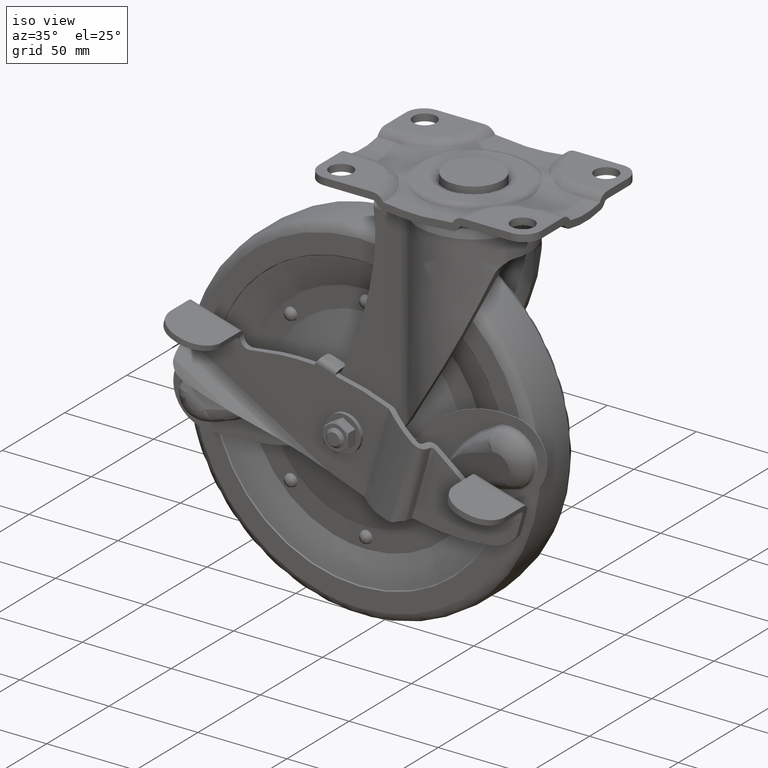
[diagram: clean part render]
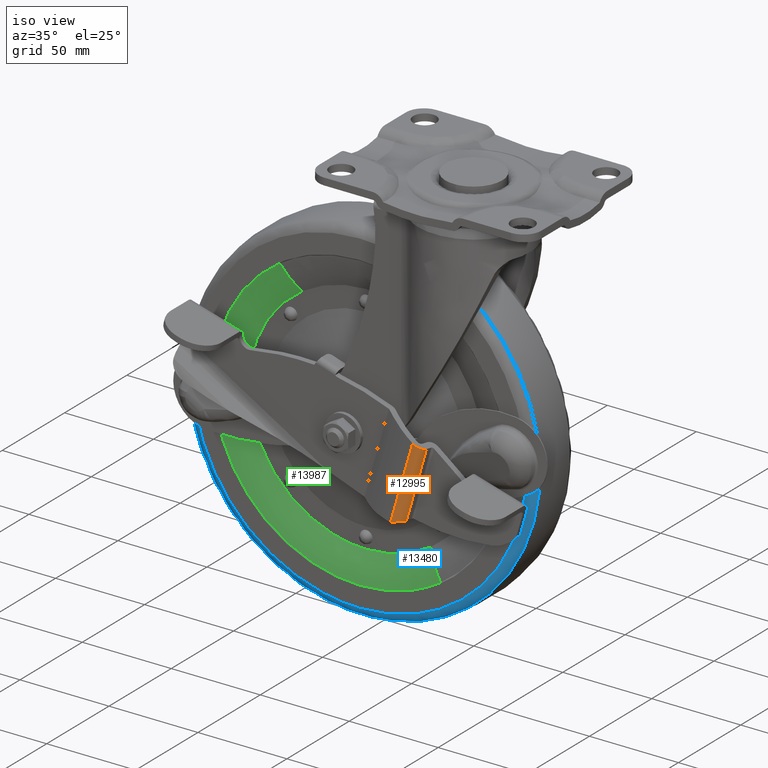
[diagram: same view with three faces highlighted in distinct colors, each labeled with its STEP entity id]
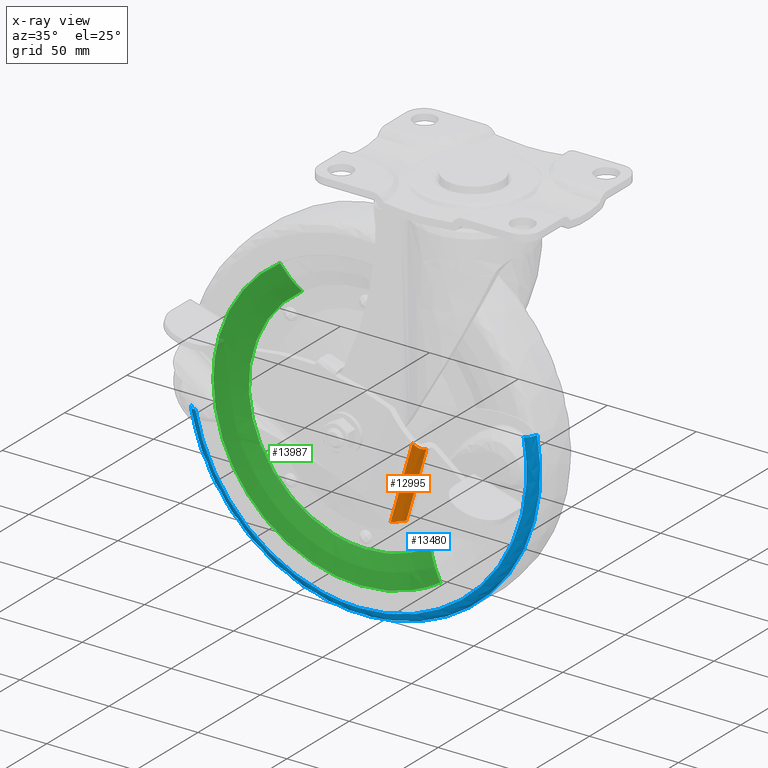
[diagram: x-ray of the same camera — body ghosted, the three highlighted faces saturated]
A machine part, iso view with three faces highlighted in distinct colors.
The next image is the same camera in x-ray (body ghosted, the three faces saturated) — at least one of them is partly hidden behind the body in this view.
Their STEP definitions:

[orange] entity #12995 — the highlighted face is a freeform B-spline surface patch.
#11049=CARTESIAN_POINT('',(-4.587267872609290,-31.407745479407449,-129.998422661881790));
#11050=VERTEX_POINT('',#11049);
#11064=CARTESIAN_POINT('',(-15.849926306554350,-31.407745566935450,-169.312863797677010));
#11065=VERTEX_POINT('',#11064);
#11066=CARTESIAN_POINT('',(-4.587267872609290,-31.407745479407449,-129.998422661881790));
#11067=CARTESIAN_POINT('',(-15.849926306554350,-31.407745566935450,-169.312863797677010));
#11068=QUASI_UNIFORM_CURVE('',1,(#11066,#11067),.UNSPECIFIED.,.F.,.U.);
#11069=EDGE_CURVE('',#11050,#11065,#11068,.T.);
#11426=CARTESIAN_POINT('',(-18.364883332796499,-34.887481090625499,-169.176665490673510));
#11427=VERTEX_POINT('',#11426);
#11428=CARTESIAN_POINT('',(-16.887379666058301,-33.722400510460048,-169.056338248163510));
#11429=VERTEX_POINT('',#11428);
#11430=CARTESIAN_POINT('',(-18.364883332796499,-34.887481090625499,-169.176665490673510));
#11431=CARTESIAN_POINT('',(-18.228866305537078,-34.822464386988813,-169.117649136827310));
#11432=CARTESIAN_POINT('',(-18.093623968221110,-34.749400455863039,-169.074454353238510));
#11433=CARTESIAN_POINT('',(-17.893725394711328,-34.626641118909681,-169.028907427187990));
#11434=CARTESIAN_POINT('',(-17.827582615120178,-34.583524041403891,-169.016956539785810));
#11435=CARTESIAN_POINT('',(-17.696548386055341,-34.492673810619429,-168.998976545986490));
#11436=CARTESIAN_POINT('',(-17.631418026257428,-34.444734457622751,-168.992953875056090));
#11437=CARTESIAN_POINT('',(-17.441626611933270,-34.296336132413707,-168.983141296072490));
#11438=CARTESIAN_POINT('',(-17.321613215349199,-34.190742136893427,-168.987328497076390));
#11439=CARTESIAN_POINT('',(-17.094419066785360,-33.966165016715657,-169.011304661607990));
#11440=CARTESIAN_POINT('',(-16.986995632139720,-33.846793108492712,-169.031235515837210));
#11441=CARTESIAN_POINT('',(-16.887379666054549,-33.722400510455302,-169.056338248164510));
#11442=B_SPLINE_CURVE_WITH_KNOTS('',3,(#11430,#11431,#11432,#11433,#11434,#11435,#11436,#11437,#11438,#11439,#11440,#11441),.UNSPECIFIED.,.F.,.U.,(4,2,2,2,2,4),(0.0,0.249999999999997,0.374999999999999,0.500000000000002,0.750000000000001,1.0),.UNSPECIFIED.);
#11443=EDGE_CURVE('',#11427,#11429,#11442,.T.);
#12025=CARTESIAN_POINT('',(-9.507827779809729,-35.497050862453349,-126.934001346011200));
#12026=VERTEX_POINT('',#12025);
#12044=CARTESIAN_POINT('',(-9.507827779809729,-35.497050862453349,-126.934001346011200));
#12045=CARTESIAN_POINT('',(-9.227762331998960,-35.538377356272520,-127.100574450110300));
#12046=CARTESIAN_POINT('',(-8.949393014075719,-35.549221250598663,-127.267445311128300));
#12047=CARTESIAN_POINT('',(-8.534282292790978,-35.521970987026357,-127.518212981411490));
#12048=CARTESIAN_POINT('',(-8.396321139385435,-35.505584045387437,-127.601878021893800));
#12049=CARTESIAN_POINT('',(-8.189996734223328,-35.469878751395179,-127.727481447355900));
#12050=CARTESIAN_POINT('',(-8.121324930892319,-35.456119788744921,-127.769366832200700));
#12051=CARTESIAN_POINT('',(-7.984189339436832,-35.424820433612098,-127.853170572829900));
#12052=CARTESIAN_POINT('',(-7.915659248796460,-35.407250435747997,-127.895130039413800));
#12053=CARTESIAN_POINT('',(-7.577028050028082,-35.310810837238570,-128.102856470784390));
#12054=CARTESIAN_POINT('',(-7.316149941626571,-35.205858010674987,-128.264138142173490));
#12055=CARTESIAN_POINT('',(-6.939436906594779,-35.007512404002568,-128.498603299251500));
#12056=CARTESIAN_POINT('',(-6.816315573840130,-34.934532316242588,-128.575506234723800));
#12057=CARTESIAN_POINT('',(-6.635399060061442,-34.814436460569681,-128.688880288952500));
#12058=CARTESIAN_POINT('',(-6.575593035124911,-34.772533721897219,-128.726422164983010));
#12059=CARTESIAN_POINT('',(-6.457885857269361,-34.685547736482761,-128.800429622193600));
#12060=CARTESIAN_POINT('',(-6.400149131458671,-34.640597264465292,-128.836791485022790));
#12061=CARTESIAN_POINT('',(-6.116953643978796,-34.408666380783451,-129.015419345593610));
#12062=CARTESIAN_POINT('',(-5.907810665202598,-34.200346874217317,-129.148230528856600));
#12063=CARTESIAN_POINT('',(-5.620196206522938,-33.853389912055590,-129.331759275499110));
#12064=CARTESIAN_POINT('',(-5.528703295254487,-33.731953572197412,-129.390303694053390));
#12065=CARTESIAN_POINT('',(-5.398312650313390,-33.540706493661631,-129.473928762650590));
#12066=CARTESIAN_POINT('',(-5.356139182325932,-33.475637177482433,-129.501010025201110));
#12067=CARTESIAN_POINT('',(-5.274992224607498,-33.343874371108711,-129.553174228931990));
#12068=CARTESIAN_POINT('',(-5.235918313323595,-33.277035320957651,-129.578321562067490));
#12069=CARTESIAN_POINT('',(-5.047957979220903,-32.938099887801350,-129.699410582289890));
#12070=CARTESIAN_POINT('',(-4.921088185430516,-32.651916647142912,-129.781537203654810));
#12071=CARTESIAN_POINT('',(-4.792572204765018,-32.274825389330907,-129.864912123568190));
#12072=CARTESIAN_POINT('',(-4.768385979889754,-32.198430521695329,-129.880614775281090));
#12073=CARTESIAN_POINT('',(-4.723121664088753,-32.043637270784473,-129.910019290626000));
#12074=CARTESIAN_POINT('',(-4.702055169801977,-31.965243208189150,-129.923713651354490));
#12075=CARTESIAN_POINT('',(-4.644104249014625,-31.728989140790151,-129.961403302079300));
#12076=CARTESIAN_POINT('',(-4.612257214738557,-31.569415319863399,-129.982141717107990));
#12077=CARTESIAN_POINT('',(-4.587267872609290,-31.407745479407449,-129.998422661881990));
#12078=B_SPLINE_CURVE_WITH_KNOTS('',3,(#12044,#12045,#12046,#12047,#12048,#12049,#12050,#12051,#12052,#12053,#12054,#12055,#12056,#12057,#12058,#12059,#12060,#12061,#12062,#12063,#12064,#12065,#12066,#12067,#12068,#12069,#12070,#12071,#12072,#12073,#12074,#12075,#12076,#12077),.UNSPECIFIED.,.F.,.U.,(4,2,2,2,2,2,2,2,2,2,2,2,2,2,2,2,4),(0.0,0.124999999999990,0.187499999999985,0.218749999999982,0.249999999999980,0.374999999999964,0.437499999999957,0.468749999999956,0.499999999999954,0.624999999999963,0.687499999999968,0.718749999999970,0.749999999999973,0.874999999999983,0.906249999999987,0.937499999999992,1.0),.UNSPECIFIED.);
#12079=EDGE_CURVE('',#12026,#11050,#12078,.T.);
#12102=CARTESIAN_POINT('',(-21.871190782445900,-35.497050973283699,-170.090660535951000));
#12103=VERTEX_POINT('',#12102);
#12104=CARTESIAN_POINT('',(-18.364883332796492,-34.887481090625563,-169.176665490673510));
#12105=CARTESIAN_POINT('',(-18.625082845039159,-35.011857537565781,-169.289563315266010));
#12106=CARTESIAN_POINT('',(-18.894403489242599,-35.120609154643311,-169.395286069115400));
#12107=CARTESIAN_POINT('',(-19.313408854905770,-35.258572606008983,-169.541458299759200));
#12108=CARTESIAN_POINT('',(-19.455591548983520,-35.300342559776453,-169.588112388143710));
#12109=CARTESIAN_POINT('',(-19.672916022216789,-35.356207659857880,-169.654753462189290));
#12110=CARTESIAN_POINT('',(-19.746033465977689,-35.373695824454771,-169.676410186086800));
#12111=CARTESIAN_POINT('',(-19.893678832233309,-35.406302288814977,-169.718566162723390));
#12112=CARTESIAN_POINT('',(-19.968211419644831,-35.421412999372841,-169.739061750338100));
#12113=CARTESIAN_POINT('',(-20.341014888895462,-35.490164474045869,-169.837636952519090));
#12114=CARTESIAN_POINT('',(-20.642423482222242,-35.524172721039839,-169.904823650052800));
#12115=CARTESIAN_POINT('',(-21.251781002428721,-35.546652298482222,-170.015611221674110));
#12116=CARTESIAN_POINT('',(-21.559726530016871,-35.535184056983759,-170.059215353181710));
#12117=CARTESIAN_POINT('',(-21.871190782444948,-35.497050973283947,-170.090660535953990));
#12118=B_SPLINE_CURVE_WITH_KNOTS('',3,(#12104,#12105,#12106,#12107,#12108,#12109,#12110,#12111,#12112,#12113,#12114,#12115,#12116,#12117),.UNSPECIFIED.,.F.,.U.,(4,2,2,2,2,2,4),(0.0,0.249999999999988,0.374999999999985,0.437499999999986,0.499999999999987,0.749999999999993,1.0),.UNSPECIFIED.);
#12119=EDGE_CURVE('',#11427,#12103,#12118,.T.);
#12188=CARTESIAN_POINT('',(-15.849926306554400,-31.407745566935450,-169.312863797677010));
#12189=CARTESIAN_POINT('',(-15.886560696047020,-31.621353205949259,-169.303978322482690));
#12190=CARTESIAN_POINT('',(-15.936245478179851,-31.830157463162180,-169.291911290874990));
#12191=CARTESIAN_POINT('',(-16.060647100763951,-32.238543710517916,-169.261570512886010));
#12192=CARTESIAN_POINT('',(-16.135367302913121,-32.438124486095020,-169.243296214325310));
#12193=CARTESIAN_POINT('',(-16.266372792428310,-32.730513508873237,-169.211077614156890));
#12194=CARTESIAN_POINT('',(-16.313204937078730,-32.826809313072161,-169.199534174348090));
#12195=CARTESIAN_POINT('',(-16.388307064548211,-32.969460704551473,-169.180967948344690));
#12196=CARTESIAN_POINT('',(-16.414184658712848,-33.016766433510973,-169.174562064580410));
#12197=CARTESIAN_POINT('',(-16.467199289467029,-33.110111749989883,-169.161418761127690));
#12198=CARTESIAN_POINT('',(-16.494373387005808,-33.156226176743473,-169.154672200661110));
#12199=CARTESIAN_POINT('',(-16.633531879686650,-33.384043991050461,-169.120068845662390));
#12200=CARTESIAN_POINT('',(-16.755339296786161,-33.557518863219848,-169.089611770235710));
#12201=CARTESIAN_POINT('',(-16.887379666058290,-33.722400510460062,-169.056338248163600));
#12202=B_SPLINE_CURVE_WITH_KNOTS('',3,(#12188,#12189,#12190,#12191,#12192,#12193,#12194,#12195,#12196,#12197,#12198,#12199,#12200,#12201),.UNSPECIFIED.,.F.,.U.,(4,2,2,2,2,2,4),(0.0,0.250000000000000,0.500000000000000,0.624999999999997,0.687499999999999,0.750000000000000,1.0),.UNSPECIFIED.);
#12203=EDGE_CURVE('',#11065,#11429,#12202,.T.);
#12955=CARTESIAN_POINT('',(-16.624682103787023,-31.340038143804641,-172.060646018744480));
#12956=CARTESIAN_POINT('',(-12.421138646085209,-31.340038110815900,-157.387381904728840));
#12957=CARTESIAN_POINT('',(-8.217595188462664,-31.340038078295432,-142.714117790670340));
#12958=CARTESIAN_POINT('',(-4.014051730693748,-31.340038044988155,-128.040853676634210));
#12959=CARTESIAN_POINT('',(-16.630404716186518,-31.373798186069802,-172.059006625435130));
#12960=CARTESIAN_POINT('',(-12.426861258526859,-31.373798153342499,-157.385742511397500));
#12961=CARTESIAN_POINT('',(-8.223317800881070,-31.373798120697732,-142.712478397345620));
#12962=CARTESIAN_POINT('',(-4.019774343161595,-31.373798087656418,-128.039214283305230));
#12963=CARTESIAN_POINT('',(-17.434782891266735,-36.119155601902058,-171.828571274168010));
#12964=CARTESIAN_POINT('',(-13.231239439459673,-36.119155605503146,-157.155307157065180));
#12965=CARTESIAN_POINT('',(-9.027695987651535,-36.119155609091848,-142.482043041341310));
#12966=CARTESIAN_POINT('',(-4.824152536810686,-36.119155613013149,-127.808778926718460));
#12967=CARTESIAN_POINT('',(-22.027681135408095,-35.492568489026965,-170.512814453102890));
#12968=CARTESIAN_POINT('',(-17.824137714754631,-35.492568451044406,-155.839550328463700));
#12969=CARTESIAN_POINT('',(-13.620594293609400,-35.492568413129092,-141.166286203955280));
#12970=CARTESIAN_POINT('',(-9.417050873018274,-35.492568375134816,-126.493022079278590));
#12971=CARTESIAN_POINT('',(-22.060356532659821,-35.488110741056573,-170.503453723879290));
#12972=CARTESIAN_POINT('',(-17.856813112230888,-35.488110702777796,-155.830189599185700));
#12973=CARTESIAN_POINT('',(-13.653269690934012,-35.488110664617643,-141.156925474720740));
#12974=CARTESIAN_POINT('',(-9.449726270560987,-35.488110626324769,-126.483661349971580));
#12982=(BOUNDED_SURFACE()B_SPLINE_SURFACE(3,2,((#12955,#12959,#12963,#12967,#12971),(#12956,#12960,#12964,#12968,#12972),(#12957,#12961,#12965,#12969,#12973),(#12958,#12962,#12966,#12970,#12974)),.UNSPECIFIED.,.F.,.F.,.U.)B_SPLINE_SURFACE_WITH_KNOTS((4,4),(3,1,1,3),(0.0,45.790502530628657),(0.0,0.080269437983779,8.107213222786374,8.187482660676571),.UNSPECIFIED.)GEOMETRIC_REPRESENTATION_ITEM()RATIONAL_B_SPLINE_SURFACE(((1.005549303136060,1.002774651568030,0.722534843666271,1.002774651564795,1.005549303129590),(1.005549303134798,1.002774651567399,0.722534843729368,1.002774651564164,1.005549303128328),(1.005549303296020,1.002774651648010,0.722534835668238,1.002774651644776,1.005549303289551),(1.005549303294758,1.002774651647379,0.722534835731334,1.002774651644144,1.005549303288289)))REPRESENTATION_ITEM('')SURFACE());
#12983=ORIENTED_EDGE('',*,*,#12079,.F.);
#12984=CARTESIAN_POINT('',(-21.871190782445900,-35.497050973283699,-170.090660535951000));
#12985=CARTESIAN_POINT('',(-9.507827779809729,-35.497050862453349,-126.934001346011200));
#12986=QUASI_UNIFORM_CURVE('',1,(#12984,#12985),.UNSPECIFIED.,.F.,.U.);
#12987=EDGE_CURVE('',#12103,#12026,#12986,.T.);
#12988=ORIENTED_EDGE('',*,*,#12987,.F.);
#12989=ORIENTED_EDGE('',*,*,#12119,.F.);
#12990=ORIENTED_EDGE('',*,*,#11443,.T.);
#12991=ORIENTED_EDGE('',*,*,#12203,.F.);
#12992=ORIENTED_EDGE('',*,*,#11069,.F.);
#12993=EDGE_LOOP('',(#12983,#12988,#12989,#12990,#12991,#12992));
#12994=FACE_OUTER_BOUND('',#12993,.T.);
#12995=ADVANCED_FACE('',(#12994),#12982,.T.);

[blue] entity #13480 — the highlighted face is a freeform B-spline surface patch.
#13245=CARTESIAN_POINT('',(-53.0,-11.999999999996120,-234.516986826797110));
#13246=VERTEX_POINT('',#13245);
#13260=CARTESIAN_POINT('',(-150.037951112125710,-12.000000000223190,-154.240212177106710));
#13261=VERTEX_POINT('',#13260);
#13262=CARTESIAN_POINT('',(-150.037951112125680,-12.000000000223187,-154.240212177106680));
#13263=CARTESIAN_POINT('',(-134.724337346452840,-12.000000000110447,-234.516986826792700));
#13264=CARTESIAN_POINT('',(-53.0,-11.999999999996120,-234.516986826797110));
#13272=(BOUNDED_CURVE()B_SPLINE_CURVE(2,(#13262,#13263,#13264),.UNSPECIFIED.,.F.,.U.)B_SPLINE_CURVE_WITH_KNOTS((3,3),(0.782161366259674,1.0),.UNSPECIFIED.)CURVE()GEOMETRIC_REPRESENTATION_ITEM()RATIONAL_B_SPLINE_CURVE((0.934335795159948,0.744786165527485,1.0))REPRESENTATION_ITEM(''));
#13273=EDGE_CURVE('',#13261,#13246,#13272,.T.);
#13323=CARTESIAN_POINT('',(44.037951112125853,-12.000000000222460,-117.218253822893300));
#13324=VERTEX_POINT('',#13323);
#13338=CARTESIAN_POINT('',(-53.0,-11.999999999996120,-234.516986826797110));
#13339=CARTESIAN_POINT('',(45.787753826777475,-12.000000000090697,-234.516986826800690));
#13340=CARTESIAN_POINT('',(45.787753826754852,-12.000000000203070,-135.729233000007500));
#13341=CARTESIAN_POINT('',(45.787753826752720,-12.000000000213698,-126.391040883647550));
#13342=CARTESIAN_POINT('',(44.037951112125853,-12.000000000222451,-117.218253822893290));
#13350=(BOUNDED_CURVE()B_SPLINE_CURVE(2,(#13338,#13339,#13340,#13341,#13342),.UNSPECIFIED.,.F.,.U.)B_SPLINE_CURVE_WITH_KNOTS((3,2,3),(0.0,0.250000000000000,0.282161366259673),.UNSPECIFIED.)CURVE()GEOMETRIC_REPRESENTATION_ITEM()RATIONAL_B_SPLINE_CURVE((1.0,0.707106781186548,1.0,0.962320615659064,0.934335795159950))REPRESENTATION_ITEM(''));
#13351=EDGE_CURVE('',#13246,#13324,#13350,.T.);
#13387=CARTESIAN_POINT('',(-150.607666015223660,-11.692248870521276,-151.535802237376800));
#13388=CARTESIAN_POINT('',(-150.350281965617260,-11.692248870521276,-152.885056676263790));
#13389=CARTESIAN_POINT('',(-131.568996860126160,-11.692248870521277,-251.340001088475050));
#13390=CARTESIAN_POINT('',(-34.479114385825554,-11.692248870521276,-232.819115474300530));
#13391=CARTESIAN_POINT('',(62.610768088475020,-11.692248870521277,-214.298229860126160));
#13392=CARTESIAN_POINT('',(43.829482982894270,-11.692248870521277,-115.843285447444940));
#13393=CARTESIAN_POINT('',(43.572098933200330,-11.692248870521279,-114.494031008099040));
#13394=CARTESIAN_POINT('',(-149.974408352535760,-16.279335901503089,-151.433252596564730));
#13395=CARTESIAN_POINT('',(-149.718694155599000,-16.279335901503089,-152.773753361204290));
#13396=CARTESIAN_POINT('',(-131.059258011298340,-16.279335901503085,-250.589943149687430));
#13397=CARTESIAN_POINT('',(-34.599273930805495,-16.279335901503092,-232.189217080492820));
#13398=CARTESIAN_POINT('',(61.860710149687293,-16.279335901503085,-213.788491011298220));
#13399=CARTESIAN_POINT('',(43.201274005297542,-16.279335901503082,-115.972301222348350));
#13400=CARTESIAN_POINT('',(42.945559808273764,-16.279335901503089,-114.631800457252720));
#13401=CARTESIAN_POINT('',(-145.409409834721910,-15.990251605443877,-150.693997494110960));
#13402=CARTESIAN_POINT('',(-145.165733194392430,-15.990251605443884,-151.971395177147200));
#13403=CARTESIAN_POINT('',(-127.384676199694920,-15.990251605443891,-245.182960209588170));
#13404=CARTESIAN_POINT('',(-35.465474495053385,-15.990251605443882,-227.648434704641490));
#13405=CARTESIAN_POINT('',(56.453727209588131,-15.990251605443891,-210.113909199694920));
#13406=CARTESIAN_POINT('',(38.672670214805784,-15.990251605443884,-116.902344166809160));
#13407=CARTESIAN_POINT('',(38.428993574393374,-15.990251605443886,-115.624946483338320));
#13415=(BOUNDED_SURFACE()B_SPLINE_SURFACE(2,2,((#13387,#13394,#13401),(#13388,#13395,#13402),(#13389,#13396,#13403),(#13390,#13397,#13404),(#13391,#13398,#13405),(#13392,#13399,#13406),(#13393,#13400,#13407)),.UNSPECIFIED.,.F.,.F.,.U.)B_SPLINE_SURFACE_WITH_KNOTS((3,1,2,1,3),(3,3),(0.0,3.275290079083177,167.039794037500000,330.804297995916780,334.079588076133970),(0.0,7.841791608633424),.UNSPECIFIED.)GEOMETRIC_REPRESENTATION_ITEM()RATIONAL_B_SPLINE_SURFACE(((0.929521207363824,0.681944447850489,0.929626516542000),(0.924139251728739,0.677995969069319,0.924243951163620),(0.649659514332440,0.476623551224524,0.649733116859211),(0.918757296093655,0.674047490288149,0.918861385785239),(0.649659514332440,0.476623551224524,0.649733116859211),(0.924139251730603,0.677995969070686,0.924243951165483),(0.929521207367551,0.681944447853223,0.929626516545728)))REPRESENTATION_ITEM('')SURFACE());
#13416=ORIENTED_EDGE('',*,*,#13273,.T.);
#13417=ORIENTED_EDGE('',*,*,#13351,.T.);
#13418=CARTESIAN_POINT('',(39.225746698344203,-15.999999999999970,-118.136230909207600));
#13419=VERTEX_POINT('',#13418);
#13420=CARTESIAN_POINT('',(44.037951112125860,-12.000000000222457,-117.218253822893260));
#13421=CARTESIAN_POINT('',(43.235917042966079,-15.999999437622312,-117.371250003724480));
#13422=CARTESIAN_POINT('',(39.225746698344189,-15.999999999999975,-118.136230909207670));
#13430=(BOUNDED_CURVE()B_SPLINE_CURVE(2,(#13420,#13421,#13422),.UNSPECIFIED.,.F.,.U.)B_SPLINE_CURVE_WITH_KNOTS((3,3),(-1.704763634283107,-0.294906610660531),.UNSPECIFIED.)CURVE()GEOMETRIC_REPRESENTATION_ITEM()RATIONAL_B_SPLINE_CURVE((0.897540745477390,0.695268764774026,0.897635387432725))REPRESENTATION_ITEM(''));
#13431=EDGE_CURVE('',#13324,#13419,#13430,.T.);
#13432=ORIENTED_EDGE('',*,*,#13431,.T.);
#13433=CARTESIAN_POINT('',(-53.0,-15.999999999999959,-229.618008000000200));
#13434=VERTEX_POINT('',#13433);
#13435=CARTESIAN_POINT('',(-53.0,-15.999999999999959,-229.618008000000200));
#13436=CARTESIAN_POINT('',(40.888775012188987,-15.999999999999970,-229.618007997674990));
#13437=CARTESIAN_POINT('',(40.888775026922737,-15.999999999999970,-135.729232994864300));
#13438=CARTESIAN_POINT('',(40.888775028315493,-15.999999999999975,-126.854130721343780));
#13439=CARTESIAN_POINT('',(39.225746698344203,-15.999999999999972,-118.136230909207650));
#13447=(BOUNDED_CURVE()B_SPLINE_CURVE(2,(#13435,#13436,#13437,#13438,#13439),.UNSPECIFIED.,.F.,.U.)B_SPLINE_CURVE_WITH_KNOTS((3,2,3),(0.0,0.250000000000000,0.282161366261022),.UNSPECIFIED.)CURVE()GEOMETRIC_REPRESENTATION_ITEM()RATIONAL_B_SPLINE_CURVE((1.0,0.707106781186548,1.0,0.962320615657484,0.934335795157604))REPRESENTATION_ITEM(''));
#13448=EDGE_CURVE('',#13434,#13419,#13447,.T.);
#13449=ORIENTED_EDGE('',*,*,#13448,.F.);
#13450=CARTESIAN_POINT('',(-145.225746698344210,-15.999999999999970,-153.322235090792300));
#13451=VERTEX_POINT('',#13450);
#13452=CARTESIAN_POINT('',(-145.225746698344210,-15.999999999999970,-153.322235090792330));
#13453=CARTESIAN_POINT('',(-130.671549613246100,-15.999999999999964,-229.618008002810830));
#13454=CARTESIAN_POINT('',(-53.0,-15.999999999999959,-229.618008000000200));
#13462=(BOUNDED_CURVE()B_SPLINE_CURVE(2,(#13452,#13453,#13454),.UNSPECIFIED.,.F.,.U.)B_SPLINE_CURVE_WITH_KNOTS((3,3),(0.782161366261022,1.0),.UNSPECIFIED.)CURVE()GEOMETRIC_REPRESENTATION_ITEM()RATIONAL_B_SPLINE_CURVE((0.934335795157604,0.744786165529064,1.0))REPRESENTATION_ITEM(''));
#13463=EDGE_CURVE('',#13451,#13434,#13462,.T.);
#13464=ORIENTED_EDGE('',*,*,#13463,.F.);
#13465=CARTESIAN_POINT('',(-150.037951112125740,-12.000000000223189,-154.240212177106680));
#13466=CARTESIAN_POINT('',(-149.235917042965410,-15.999999437622352,-154.087215996275290));
#13467=CARTESIAN_POINT('',(-145.225746698344150,-15.999999999999975,-153.322235090792280));
#13475=(BOUNDED_CURVE()B_SPLINE_CURVE(2,(#13465,#13466,#13467),.UNSPECIFIED.,.F.,.U.)B_SPLINE_CURVE_WITH_KNOTS((3,3),(-1.704763634282938,-0.294906610660520),.UNSPECIFIED.)CURVE()GEOMETRIC_REPRESENTATION_ITEM()RATIONAL_B_SPLINE_CURVE((0.897540745477342,0.695268764774048,0.897635387432728))REPRESENTATION_ITEM(''));
#13476=EDGE_CURVE('',#13261,#13451,#13475,.T.);
#13477=ORIENTED_EDGE('',*,*,#13476,.F.);
#13478=EDGE_LOOP('',(#13416,#13417,#13432,#13449,#13464,#13477));
#13479=FACE_OUTER_BOUND('',#13478,.T.);
#13480=ADVANCED_FACE('',(#13479),#13415,.T.);

[green] entity #13987 — the highlighted face is a freeform B-spline surface patch.
#13682=CARTESIAN_POINT('',(-135.499999999902290,-15.500000484433871,-135.729232999999990));
#13683=VERTEX_POINT('',#13682);
#13697=CARTESIAN_POINT('',(-98.077533605464851,-15.499999999949139,-66.633169697110986));
#13698=VERTEX_POINT('',#13697);
#13699=CARTESIAN_POINT('',(-98.077533605464851,-15.499999999949136,-66.633169697110986));
#13700=CARTESIAN_POINT('',(-135.499999999608290,-15.500000242186665,-91.047187020800479));
#13701=CARTESIAN_POINT('',(-135.499999999902310,-15.500000484433867,-135.729232999999970));
#13709=(BOUNDED_CURVE()B_SPLINE_CURVE(2,(#13699,#13700,#13701),.UNSPECIFIED.,.F.,.U.)B_SPLINE_CURVE_WITH_KNOTS((3,3),(0.593601467029690,0.749999999999356),.UNSPECIFIED.)CURVE()GEOMETRIC_REPRESENTATION_ITEM()RATIONAL_B_SPLINE_CURVE((0.862793519059074,0.816767721042686,0.999999999998490))REPRESENTATION_ITEM(''));
#13710=EDGE_CURVE('',#13698,#13683,#13709,.T.);
#13757=CARTESIAN_POINT('',(-7.922466394535142,-15.499999999949139,-204.825296302889090));
#13758=VERTEX_POINT('',#13757);
#13772=CARTESIAN_POINT('',(-53.0,-15.500000000000000,-218.229232999999990));
#13773=VERTEX_POINT('',#13772);
#13774=CARTESIAN_POINT('',(-53.0,-15.500000000000000,-218.229232999999990));
#13775=CARTESIAN_POINT('',(-28.468383271858805,-15.499999999974566,-218.229232999768210));
#13776=CARTESIAN_POINT('',(-7.922466394535142,-15.499999999949136,-204.825296302889090));
#13784=(BOUNDED_CURVE()B_SPLINE_CURVE(2,(#13774,#13775,#13776),.UNSPECIFIED.,.F.,.U.)B_SPLINE_CURVE_WITH_KNOTS((3,3),(0.0,0.093601467029690),.UNSPECIFIED.)CURVE()GEOMETRIC_REPRESENTATION_ITEM()RATIONAL_B_SPLINE_CURVE((1.0,0.890339060144051,0.862793519059074))REPRESENTATION_ITEM(''));
#13785=EDGE_CURVE('',#13773,#13758,#13784,.T.);
#13787=CARTESIAN_POINT('',(-135.499999999902310,-15.500000484433867,-135.729232999999970));
#13788=CARTESIAN_POINT('',(-135.500000000305080,-15.500000242225871,-218.229233000068940));
#13789=CARTESIAN_POINT('',(-53.0,-15.500000000000000,-218.229232999999990));
#13797=(BOUNDED_CURVE()B_SPLINE_CURVE(2,(#13787,#13788,#13789),.UNSPECIFIED.,.F.,.U.)B_SPLINE_CURVE_WITH_KNOTS((3,3),(0.749999999999356,1.0),.UNSPECIFIED.)CURVE()GEOMETRIC_REPRESENTATION_ITEM()RATIONAL_B_SPLINE_CURVE((1.000000000001510,0.707106781185793,1.0))REPRESENTATION_ITEM(''));
#13798=EDGE_CURVE('',#13683,#13773,#13797,.T.);
#13839=CARTESIAN_POINT('',(-89.116939517151209,-10.500000000488191,-80.368210788677686));
#13840=VERTEX_POINT('',#13839);
#13841=CARTESIAN_POINT('',(-98.077533605464851,-15.499999999949139,-66.633169697110986));
#13842=CARTESIAN_POINT('',(-93.314185280361926,-14.699102309644276,-73.934558905663465));
#13843=CARTESIAN_POINT('',(-89.116939517151209,-10.500000000488189,-80.368210788677686));
#13851=(BOUNDED_CURVE()B_SPLINE_CURVE(2,(#13841,#13842,#13843),.UNSPECIFIED.,.F.,.U.)B_SPLINE_CURVE_WITH_KNOTS((3,3),(-1.394959711226777,-0.602600248514036),.UNSPECIFIED.)CURVE()GEOMETRIC_REPRESENTATION_ITEM()RATIONAL_B_SPLINE_CURVE((0.947031941394556,0.927391866408569,0.947153276741674))REPRESENTATION_ITEM(''));
#13852=EDGE_CURVE('',#13698,#13840,#13851,.T.);
#13869=CARTESIAN_POINT('',(-16.883060482848801,-10.500000000488191,-191.090255211322300));
#13870=VERTEX_POINT('',#13869);
#13896=CARTESIAN_POINT('',(-7.922466394535142,-15.499999999949136,-204.825296302889030));
#13897=CARTESIAN_POINT('',(-12.685814719638078,-14.699102309644289,-197.523907094336610));
#13898=CARTESIAN_POINT('',(-16.883060482848798,-10.500000000488193,-191.090255211322360));
#13906=(BOUNDED_CURVE()B_SPLINE_CURVE(2,(#13896,#13897,#13898),.UNSPECIFIED.,.F.,.U.)B_SPLINE_CURVE_WITH_KNOTS((3,3),(-1.394959711226780,-0.602600248514037),.UNSPECIFIED.)CURVE()GEOMETRIC_REPRESENTATION_ITEM()RATIONAL_B_SPLINE_CURVE((0.947031941394556,0.927391866408569,0.947153276741673))REPRESENTATION_ITEM(''));
#13907=EDGE_CURVE('',#13758,#13870,#13906,.T.);
#13912=CARTESIAN_POINT('',(-96.591760878043075,-15.569635847041308,-64.645791271925262));
#13913=CARTESIAN_POINT('',(-97.561910543189526,-15.569635847041305,-65.278706550195210));
#13914=CARTESIAN_POINT('',(-168.353622326473070,-15.569635847041306,-111.462463110849110));
#13915=CARTESIAN_POINT('',(-122.810196107811990,-15.569635847041305,-181.272659218661150));
#13916=CARTESIAN_POINT('',(-77.266769889150851,-15.569635847041306,-251.082855326473120));
#13917=CARTESIAN_POINT('',(-6.475058105551355,-15.569635847041310,-204.899098765613080));
#13918=CARTESIAN_POINT('',(-5.504908440096253,-15.569635847041312,-204.266183487141690));
#13919=CARTESIAN_POINT('',(-91.557551868890130,-14.881530613194036,-72.854886191266331));
#13920=CARTESIAN_POINT('',(-92.415663477162227,-14.881530613194036,-73.414709038037330));
#13921=CARTESIAN_POINT('',(-155.031970870845330,-14.881530613194039,-114.264919105705220));
#13922=CARTESIAN_POINT('',(-114.748142382570040,-14.881530613194037,-176.013061488275270));
#13923=CARTESIAN_POINT('',(-74.464313894294762,-14.881530613194039,-237.761203870845410));
#13924=CARTESIAN_POINT('',(-11.848006500332191,-14.881530613194037,-196.910993802995110));
#13925=CARTESIAN_POINT('',(-10.989894891787081,-14.881530613194039,-196.351170956046050));
#13926=CARTESIAN_POINT('',(-87.178884802054142,-10.082133639520015,-79.995013569072015));
#13927=CARTESIAN_POINT('',(-87.939547665354411,-10.082133639520015,-80.491261895584216));
#13928=CARTESIAN_POINT('',(-143.445031115549140,-10.082133639520011,-116.702446381315500));
#13929=CARTESIAN_POINT('',(-107.735908867116860,-10.082133639520015,-171.438355248432370));
#13930=CARTESIAN_POINT('',(-72.026786618684497,-10.082133639520011,-226.174264115549110));
#13931=CARTESIAN_POINT('',(-16.521303168241992,-10.082133639520013,-189.963079629656250));
#13932=CARTESIAN_POINT('',(-15.760640304699736,-10.082133639520015,-189.466831302986180));
#13940=(BOUNDED_SURFACE()B_SPLINE_SURFACE(2,2,((#13912,#13919,#13926),(#13913,#13920,#13927),(#13914,#13921,#13928),(#13915,#13922,#13929),(#13916,#13923,#13930),(#13917,#13924,#13931),(#13918,#13925,#13932)),.UNSPECIFIED.,.F.,.F.,.U.)B_SPLINE_SURFACE_WITH_KNOTS((3,1,2,1,3),(3,3),(0.0,2.762064421441868,140.865285506797790,278.968506592153690,281.730571014489780),(0.0,19.062550185073430),.UNSPECIFIED.)GEOMETRIC_REPRESENTATION_ITEM()RATIONAL_B_SPLINE_SURFACE(((0.960211598127607,0.936166319006416,0.960346618138246),(0.954651944211033,0.930745887976237,0.954786182451766),(0.671109594439084,0.654303905411099,0.671203962414598),(0.949092290294460,0.925325456946059,0.949225746765286),(0.671109594439084,0.654303905411099,0.671203962414598),(0.954651944212833,0.930745887977992,0.954786182453566),(0.960211598131207,0.936166319009926,0.960346618141846)))REPRESENTATION_ITEM('')SURFACE());
#13941=ORIENTED_EDGE('',*,*,#13785,.T.);
#13942=ORIENTED_EDGE('',*,*,#13907,.T.);
#13943=CARTESIAN_POINT('',(-53.0,-10.499999999999901,-201.829733000000000));
#13944=VERTEX_POINT('',#13943);
#13945=CARTESIAN_POINT('',(-53.0,-10.499999999999901,-201.829733000000000));
#13946=CARTESIAN_POINT('',(-33.344822647521596,-10.500000000244045,-201.829733000374120));
#13947=CARTESIAN_POINT('',(-16.883060482848794,-10.500000000488193,-191.090255211322300));
#13955=(BOUNDED_CURVE()B_SPLINE_CURVE(2,(#13945,#13946,#13947),.UNSPECIFIED.,.F.,.U.)B_SPLINE_CURVE_WITH_KNOTS((3,3),(0.0,0.093601467030247),.UNSPECIFIED.)CURVE()GEOMETRIC_REPRESENTATION_ITEM()RATIONAL_B_SPLINE_CURVE((1.0,0.890339060143398,0.862793519058746))REPRESENTATION_ITEM(''));
#13956=EDGE_CURVE('',#13944,#13870,#13955,.T.);
#13957=ORIENTED_EDGE('',*,*,#13956,.F.);
#13958=CARTESIAN_POINT('',(-89.116939517151209,-10.500000000488191,-80.368210788677686));
#13959=CARTESIAN_POINT('',(-92.813083152965561,-10.500000000483430,-82.778907087373241));
#13960=CARTESIAN_POINT('',(-99.028961966079862,-10.500000000471591,-87.787904350281480));
#13961=CARTESIAN_POINT('',(-105.683951386434900,-10.500000000450530,-95.494071766381865));
#13962=CARTESIAN_POINT('',(-110.299664756036290,-10.500000000429820,-102.506111164415400));
#13963=CARTESIAN_POINT('',(-114.119022387809490,-10.500000000406180,-109.987004120068600));
#13964=CARTESIAN_POINT('',(-116.931268185154710,-10.500000000379270,-118.148638746919400));
#13965=CARTESIAN_POINT('',(-118.809289522436500,-10.500000000346260,-127.575813448100500));
#13966=CARTESIAN_POINT('',(-119.350760749019400,-10.500000000313280,-136.747606812448200));
#13967=CARTESIAN_POINT('',(-118.346456477590100,-10.500000000272619,-147.427883524970810));
#13968=CARTESIAN_POINT('',(-115.758291110361000,-10.500000000232800,-157.398856606060800));
#13969=CARTESIAN_POINT('',(-111.325956871817400,-10.500000000191079,-167.412323083856710));
#13970=CARTESIAN_POINT('',(-106.212402097611000,-10.500000000156710,-175.313060697014010));
#13971=CARTESIAN_POINT('',(-100.130208432710210,-10.500000000122860,-182.323323570968990));
#13972=CARTESIAN_POINT('',(-94.037424822271447,-10.500000000097019,-187.786990924094910));
#13973=CARTESIAN_POINT('',(-87.382406019140504,-10.500000000072671,-192.347940316940990));
#13974=CARTESIAN_POINT('',(-81.138009037790681,-10.500000000053570,-195.663927754012290));
#13975=CARTESIAN_POINT('',(-74.186114005107513,-10.500000000035490,-198.505661882538390));
#13976=CARTESIAN_POINT('',(-64.914299057451601,-10.500000000015261,-201.075706722028800));
#13977=CARTESIAN_POINT('',(-57.412789182528350,-10.500000000006560,-201.830266217464210));
#13978=CARTESIAN_POINT('',(-53.0,-10.499999999999901,-201.829733000000000));
#13979=B_SPLINE_CURVE_WITH_KNOTS('',3,(#13958,#13959,#13960,#13961,#13962,#13963,#13964,#13965,#13966,#13967,#13968,#13969,#13970,#13971,#13972,#13973,#13974,#13975,#13976,#13977,#13978),.UNSPECIFIED.,.F.,.U.,(4,1,1,1,1,1,1,1,1,1,1,1,1,1,1,1,1,1,4),(0.000000265029939,13.238395278629129,23.829114421261920,30.448372653528139,38.391374041490110,48.982089424349176,56.263219353649973,67.184795212199262,76.451675286830735,88.366243849376815,97.964059625514750,109.216710041084300,116.497858097221400,125.764756117374110,133.707775735119100,140.658017337892690,146.946209179900110,156.213155146644710,169.451426680905600),.UNSPECIFIED.);
#13980=EDGE_CURVE('',#13840,#13944,#13979,.T.);
#13981=ORIENTED_EDGE('',*,*,#13980,.F.);
#13982=ORIENTED_EDGE('',*,*,#13852,.F.);
#13983=ORIENTED_EDGE('',*,*,#13710,.T.);
#13984=ORIENTED_EDGE('',*,*,#13798,.T.);
#13985=EDGE_LOOP('',(#13941,#13942,#13957,#13981,#13982,#13983,#13984));
#13986=FACE_OUTER_BOUND('',#13985,.T.);
#13987=ADVANCED_FACE('',(#13986),#13940,.T.);